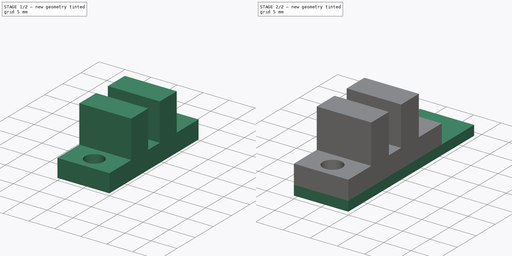
[diagram: build sequence overview — one tinted view per stage of 2, left to right]
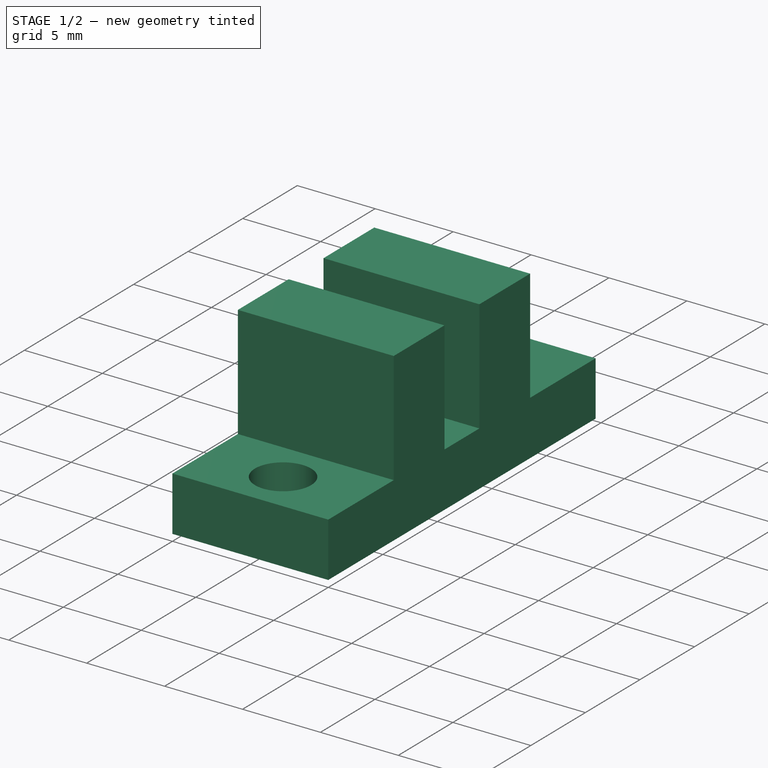
[diagram: stage 1 of 2 — iso view after this stage's code; geometry added in this stage tinted green]
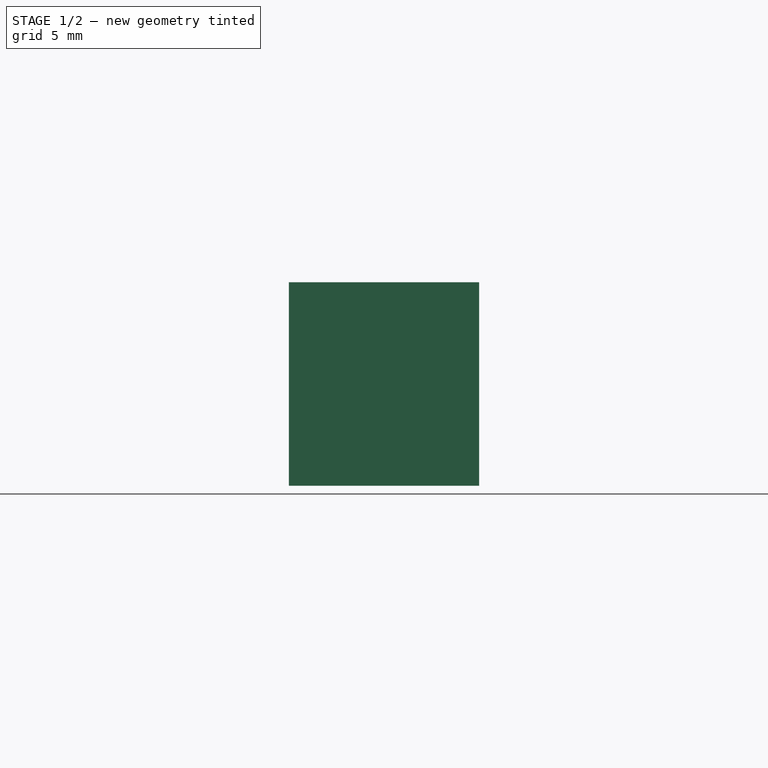
[diagram: stage 1 of 2 — front view after this stage's code; geometry added in this stage tinted green]
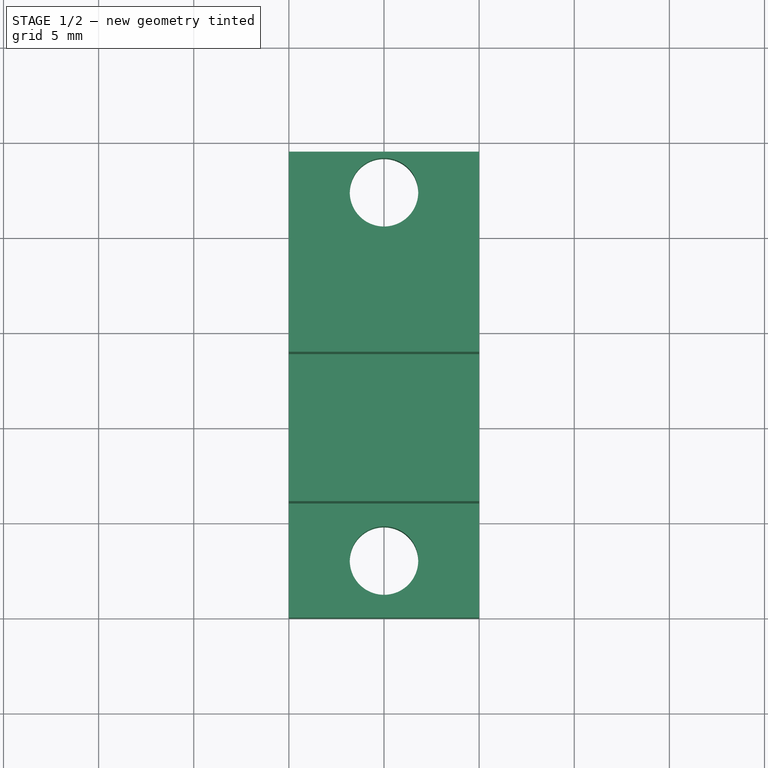
[diagram: stage 1 of 2 — top view after this stage's code; geometry added in this stage tinted green]
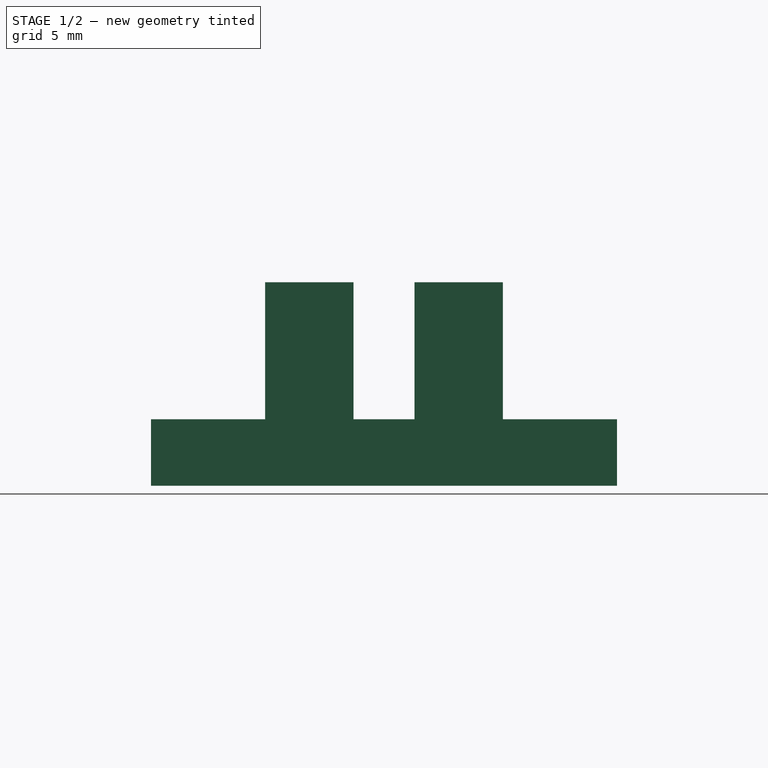
[diagram: stage 1 of 2 — right view after this stage's code; geometry added in this stage tinted green]
FCSTD DOCUMENT  (FreeCAD 0.17R13522 (Git))
Label: OticalEndstop
License: All rights reserved
LicenseURL: http://en.wikipedia.org/wiki/All_rights_reserved
objects: Sketcher::SketchObject×3, PartDesign::Pad×2, PartDesign::Body×2, PartDesign::Pocket×1, Part::MultiFuse×1
note: 12 computed .brp shape members not serialized (recipe doc carries the construction recipe); baked Part::Feature solids carry a one-line shape summary decoded from their .brp

FEATURE [PartDesign::Body] Body
  Group = -> [Sketch,Pad]
  Origin = -> Origin
  Tip = -> Pad
FEATURE [Sketcher::SketchObject] Sketch001
  AttachmentOffset = pos=(0,0,-5) rot=(0,0,1;0rad)
  MapMode = 5
  Placement = pos=(-5,0,0) rot=(0.57735,0.57735,0.57735;2.0944rad)
  Support = -> [YZ_Plane001]
  sketch-geometry (12):
    g0: LineSegment StartX=0 StartY=1.8 StartZ=0 EndX=0 EndY=5.3 EndZ=0
    g1: LineSegment StartX=0 StartY=5.3 StartZ=0 EndX=6 EndY=5.3 EndZ=0
    g2: LineSegment StartX=6 StartY=5.3 StartZ=0 EndX=6 EndY=12.5 EndZ=0
    g3: LineSegment StartX=6 StartY=12.5 StartZ=0 EndX=10.65 EndY=12.5 EndZ=0
    g4: LineSegment StartX=10.65 StartY=12.5 StartZ=0 EndX=10.65 EndY=5.3 EndZ=0
    g5: LineSegment StartX=10.65 StartY=5.3 StartZ=0 EndX=13.85 EndY=5.3 EndZ=0
    g6: LineSegment StartX=13.85 StartY=5.3 StartZ=0 EndX=13.85 EndY=12.5 EndZ=0
    g7: LineSegment StartX=13.85 StartY=12.5 StartZ=0 EndX=18.5 EndY=12.5 EndZ=0
    g8: LineSegment StartX=18.5 StartY=12.5 StartZ=0 EndX=18.5 EndY=5.3 EndZ=0
    g9: LineSegment StartX=18.5 StartY=5.3 StartZ=0 EndX=24.5 EndY=5.3 EndZ=0
    g10: LineSegment StartX=24.5 StartY=5.3 StartZ=0 EndX=24.5 EndY=1.8 EndZ=0
    g11: LineSegment StartX=24.5 StartY=1.8 StartZ=0 EndX=0 EndY=1.8 EndZ=0
  constraints (37):
    c: Coincident(g0,g1)
    c: Coincident(g1,g2)
    c: Coincident(g2,g3)
    c: Coincident(g3,g4)
    c: Coincident(g4,g5)
    c: Coincident(g5,g6)
    c: Coincident(g6,g7)
    c: Coincident(g7,g8)
    c: Coincident(g8,g9)
    c: Coincident(g9,g10)
    c: Coincident(g10,g11)
    c: Coincident(g0,g11)
    c: Vertical(g0)
    c: Vertical(g2)
    c: Vertical(g4)
    c: Vertical(g6)
    c: Vertical(g8)
    c: Vertical(g10)
    c: Horizontal(g3)
    c: Horizontal(g7)
    c: Horizontal(g11)
    c: Horizontal(g1)
    c: Horizontal(g5)
    c: Horizontal(g9)
    c: DistanceX(g11,g11) = 24.5
    c: DistanceX(g1,g1) = 6
    c: Equal(g1,g9)
    c: Equal(g3,g7)
    c: DistanceX(g5,g5) = 3.2
    c: PointOnObject(g4,g1)
    c: Equal(g0,g10)
    c: DistanceX(g3,g3) = 4.65
    c: DistanceY(g4,g4) = 7.2
    c: Equal(g4,g6)
    c: DistanceY(g0,g0) = 3.5
    c: PointOnObject(g0,g-2)
    c: DistanceY(g-1,g0) = 1.8
FEATURE [PartDesign::Pad] Pad001
  Length = 10
  Length2 = 100
  Placement = pos=(0,0,0) rot=(0.57735,0.57735,0.57735;2.0944rad)
  Profile = -> Sketch001
  Type = 0
FEATURE [Sketcher::SketchObject] Sketch002
  MapMode = 5
  Placement = pos=(0,0,5.3) rot=(0,0,-1;1.5708rad)
  Support = -> [Pad001]
  sketch-geometry (3):
    g0: LineSegment [constr] StartX=-3 StartY=0 StartZ=0 EndX=-22.3629 EndY=0 EndZ=0
    g1: Circle CenterX=-22.3629 CenterY=0 CenterZ=0 NormalX=0 NormalY=0 NormalZ=1 AngleXU=0 Radius=1.8
    g2: Circle CenterX=-3 CenterY=0 CenterZ=0 NormalX=0 NormalY=0 NormalZ=1 AngleXU=0 Radius=1.8
  constraints (7):
    c: Horizontal(g0)
    c: Radius(g2) = 1.8
    c: Equal(g2,g1)
    c: Coincident(g1,g0)
    c: Coincident(g2,g0)
    c: DistanceX(g0,g-1) = 3
    c: PointOnObject(g0,g-1)
FEATURE [PartDesign::Pocket] Pocket
  BaseFeature = -> Pad001
  Length = 5
  Length2 = 100
  Placement = pos=(0,0,0) rot=(0.57735,0.57735,0.57735;2.0944rad)
  Profile = -> Sketch002
  Type = 1
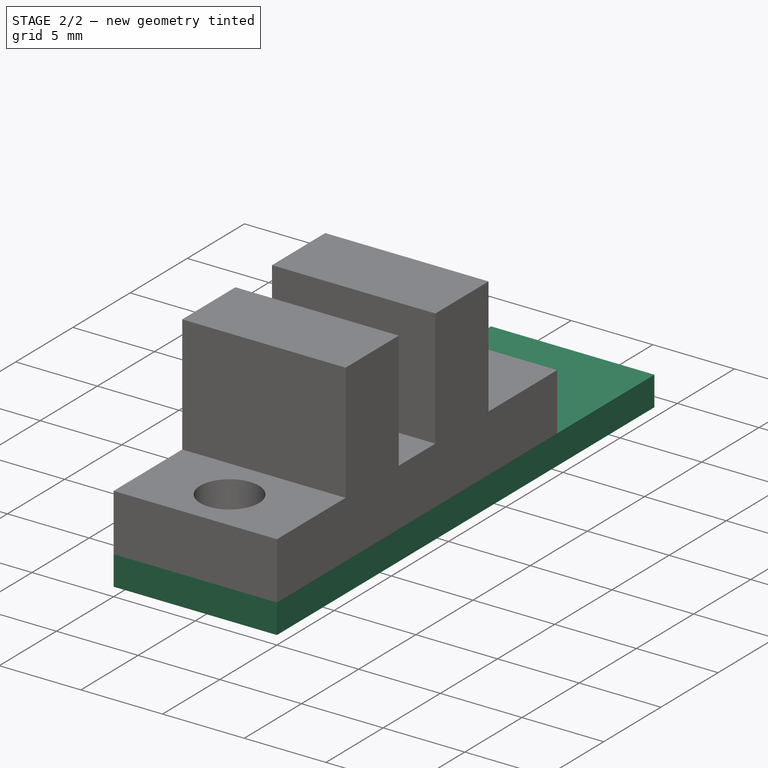
[diagram: stage 2 of 2 — iso view after this stage's code; geometry added in this stage tinted green]
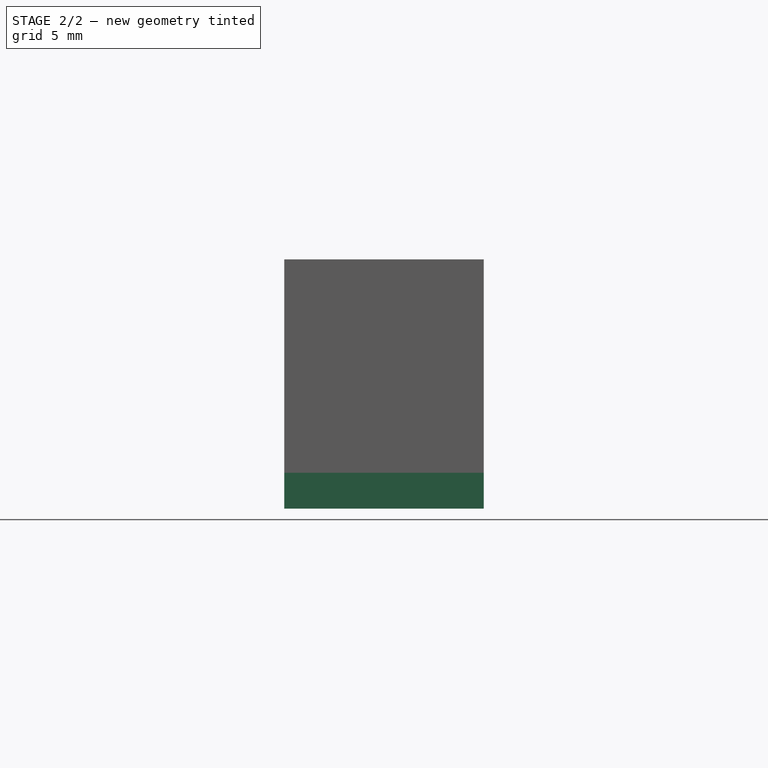
[diagram: stage 2 of 2 — front view after this stage's code; geometry added in this stage tinted green]
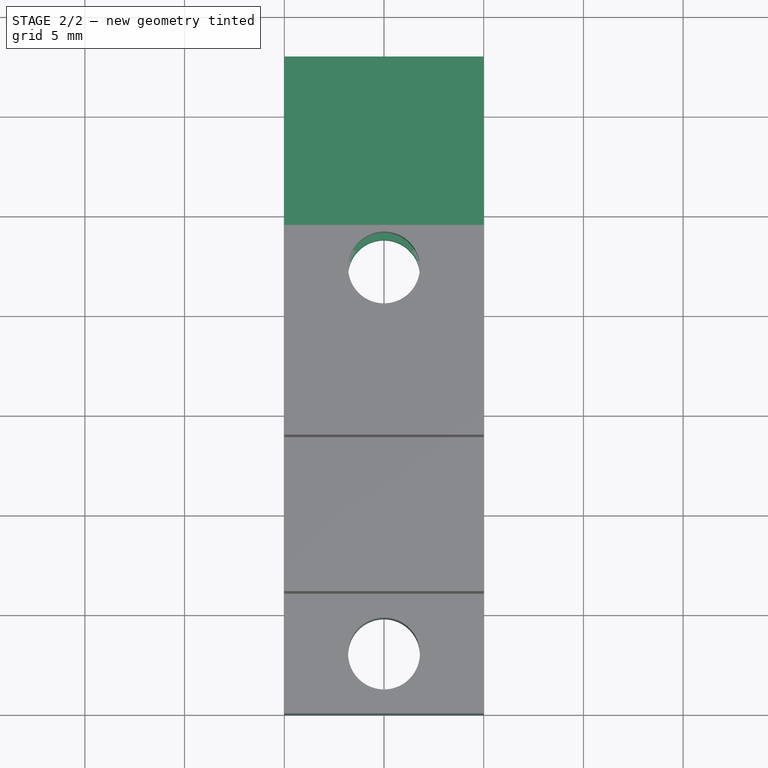
[diagram: stage 2 of 2 — top view after this stage's code; geometry added in this stage tinted green]
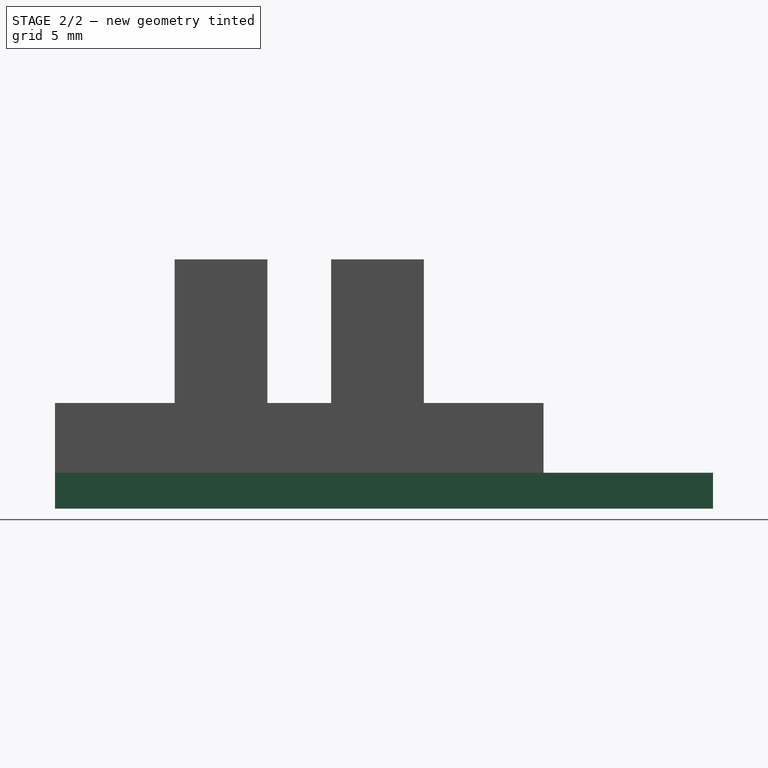
[diagram: stage 2 of 2 — right view after this stage's code; geometry added in this stage tinted green]
FEATURE [Sketcher::SketchObject] Sketch
  MapMode = 5
  Support = -> [XY_Plane]
  sketch-geometry (7):
    g0: LineSegment StartX=-5 StartY=33 StartZ=0 EndX=5 EndY=33 EndZ=0
    g1: LineSegment StartX=5 StartY=33 StartZ=0 EndX=5 EndY=0 EndZ=0
    g2: LineSegment StartX=5 StartY=0 StartZ=0 EndX=-5 EndY=0 EndZ=0
    g3: LineSegment StartX=-5 StartY=0 StartZ=0 EndX=-5 EndY=33 EndZ=0
    g4: LineSegment [constr] StartX=0 StartY=22 StartZ=0 EndX=0 EndY=3 EndZ=0
    g5: Circle CenterX=0 CenterY=22 CenterZ=0 NormalX=0 NormalY=0 NormalZ=1 AngleXU=0 Radius=1.8
    g6: Circle CenterX=0 CenterY=3 CenterZ=0 NormalX=0 NormalY=0 NormalZ=1 AngleXU=0 Radius=1.8
  constraints (19):
    c: Coincident(g0,g1)
    c: Coincident(g1,g2)
    c: Coincident(g2,g3)
    c: Coincident(g3,g0)
    c: Horizontal(g0)
    c: Horizontal(g2)
    c: Vertical(g1)
    c: Vertical(g3)
    c: DistanceY(g3,g3) = 33
    c: DistanceX(g0,g0) = 10
    c: Symmetric(g2,g1,g-1)
    c: Vertical(g4)
    c: DistanceY(g4,g4) = 19
    c: Radius(g5) = 1.8
    c: Equal(g5,g6)
    c: Coincident(g4,g5)
    c: Coincident(g4,g6)
    c: DistanceY(g-1,g4) = 3
    c: PointOnObject(g4,g-2)
FEATURE [PartDesign::Pad] Pad
  Length = 1.8
  Length2 = 100
  Profile = -> Sketch
  Type = 0
FEATURE [PartDesign::Body] Body001
  Group = -> [Sketch001,Pad001,Sketch002,Pocket]
  Origin = -> Origin001
  Tip = -> Pocket
FEATURE [Part::MultiFuse] Fusion
  Shapes = -> [Body,Body001]
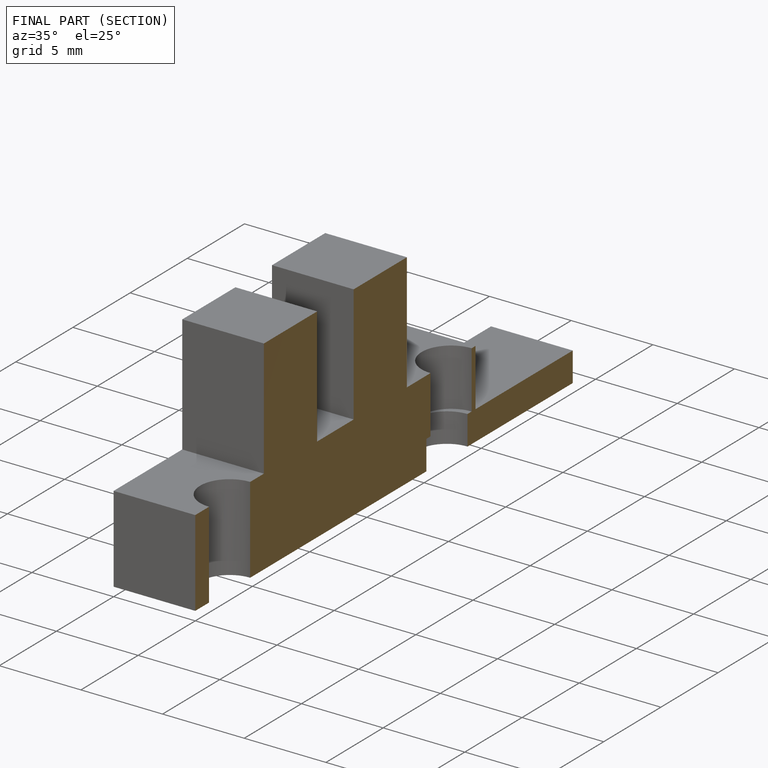
[diagram: finished part — half-section view (interior)]
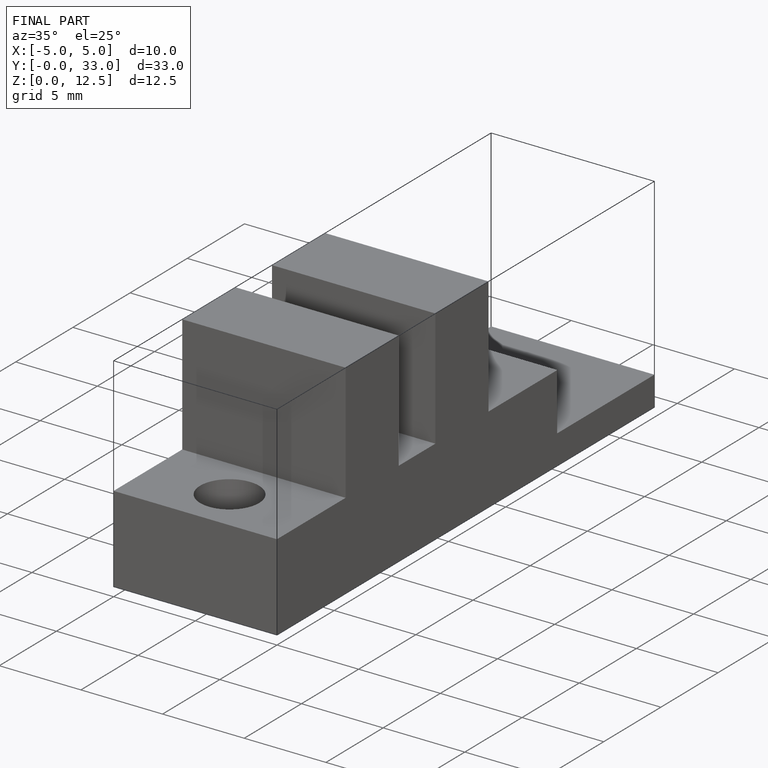
[diagram: finished part — iso view with bounding-box wireframe]
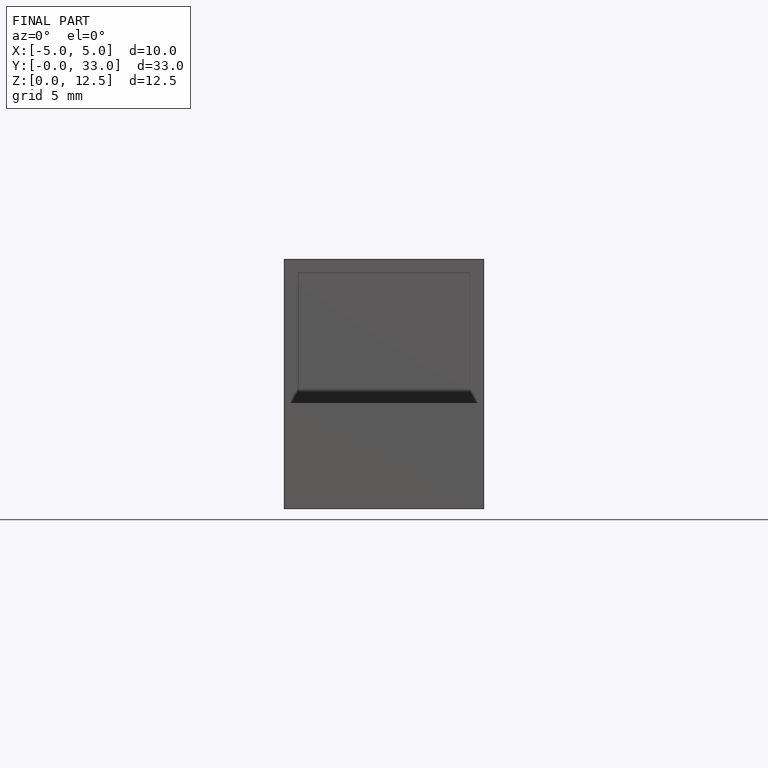
[diagram: finished part — front view with bounding-box wireframe]
